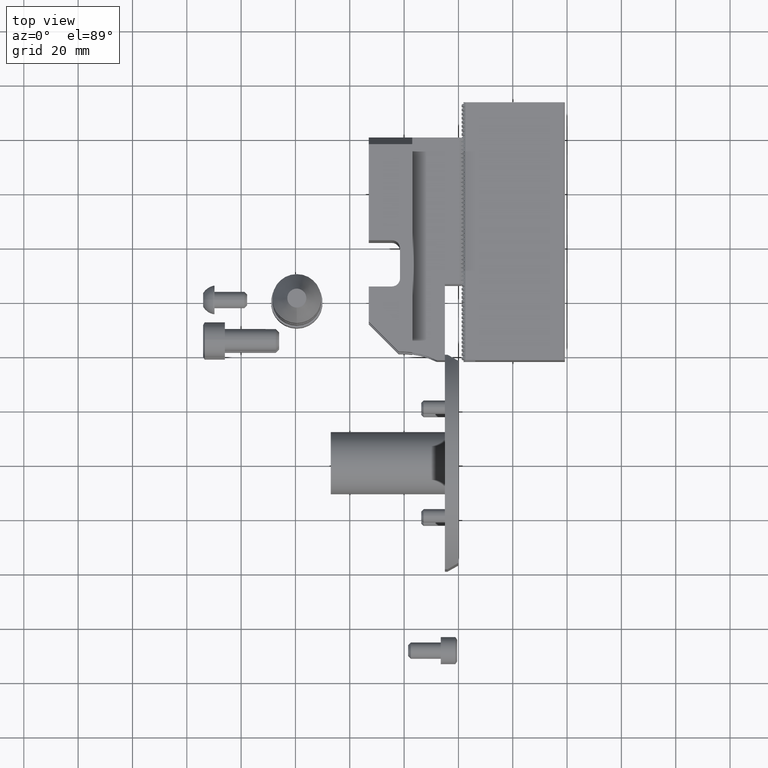
[diagram: clean part render]
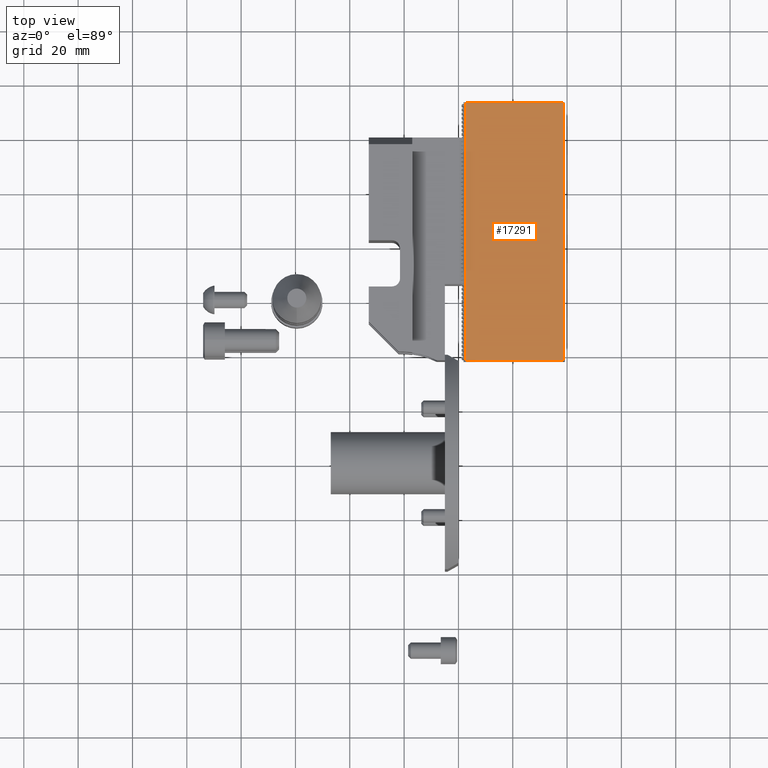
[diagram: same view with one face highlighted and labeled with its STEP entity id]
A machine part, top view. The second image highlights one B-rep face of the part: STEP entity #17291.
In plain terms, the highlighted planar face has unit normal (0, 0, 1).
Its self-contained STEP definition (entity closure, byte-faithful):
#366=LINE('',#24876,#2619);
#564=LINE('',#25273,#2817);
#761=LINE('',#25666,#3014);
#762=LINE('',#25668,#3015);
#2619=VECTOR('',#20318,1000.);
#2817=VECTOR('',#20518,1000.);
#3014=VECTOR('',#20721,1000.);
#3015=VECTOR('',#20722,1000.);
#4771=PLANE('',#18522);
#6652=ORIENTED_EDGE('',*,*,#11228,.T.);
#6653=ORIENTED_EDGE('',*,*,#10833,.F.);
#6654=ORIENTED_EDGE('',*,*,#11031,.F.);
#6655=ORIENTED_EDGE('',*,*,#11229,.T.);
#10833=EDGE_CURVE('',#13192,#13193,#366,.T.);
#11031=EDGE_CURVE('',#13390,#13192,#564,.T.);
#11228=EDGE_CURVE('',#13584,#13193,#761,.T.);
#11229=EDGE_CURVE('',#13390,#13584,#762,.T.);
#13192=VERTEX_POINT('',#24875);
#13193=VERTEX_POINT('',#24877);
#13390=VERTEX_POINT('',#25272);
#13584=VERTEX_POINT('',#25667);
#15115=EDGE_LOOP('',(#6652,#6653,#6654,#6655));
#16220=FACE_BOUND('',#15115,.T.);
#17291=ADVANCED_FACE('',(#16220),#4771,.T.);
#18522=AXIS2_PLACEMENT_3D('',#25665,#20719,#20720);
#20318=DIRECTION('',(0.,1.,0.));
#20518=DIRECTION('',(-1.,0.,3.67971646419323E-16));
#20719=DIRECTION('',(3.67971646419323E-16,0.,1.));
#20720=DIRECTION('',(-1.,0.,3.67971646419323E-16));
#20721=DIRECTION('',(-1.,0.,3.67971646419323E-16));
#20722=DIRECTION('',(0.,1.,0.));
#24875=CARTESIAN_POINT('',(2.6,37.585364767134,17.5));
#24876=CARTESIAN_POINT('',(2.6,37.585364767134,17.5));
#24877=CARTESIAN_POINT('',(2.6,132.585364767134,17.5));
#25272=CARTESIAN_POINT('',(38.6,37.585364767134,17.5));
#25273=CARTESIAN_POINT('',(2.6,37.585364767134,17.5));
#25665=CARTESIAN_POINT('',(2.6,37.585364767134,17.5));
#25666=CARTESIAN_POINT('',(2.6,132.585364767134,17.5));
#25667=CARTESIAN_POINT('',(38.6,132.585364767134,17.5));
#25668=CARTESIAN_POINT('',(38.6,37.585364767134,17.5));